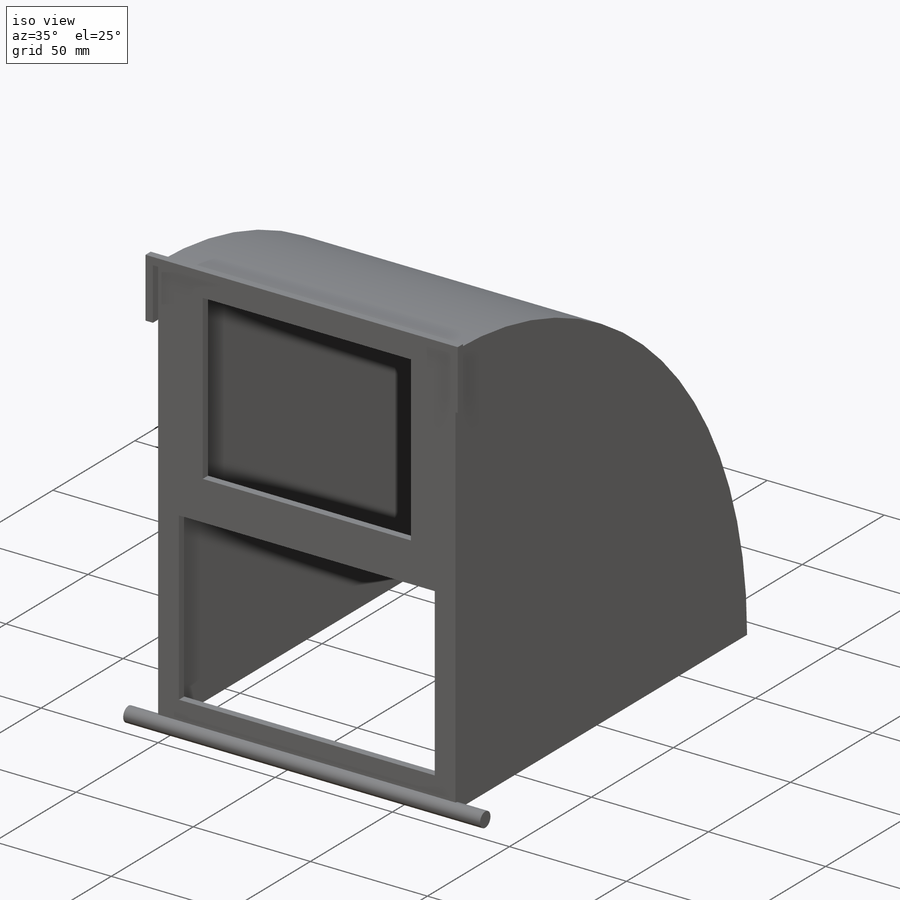
[diagram: iso view]
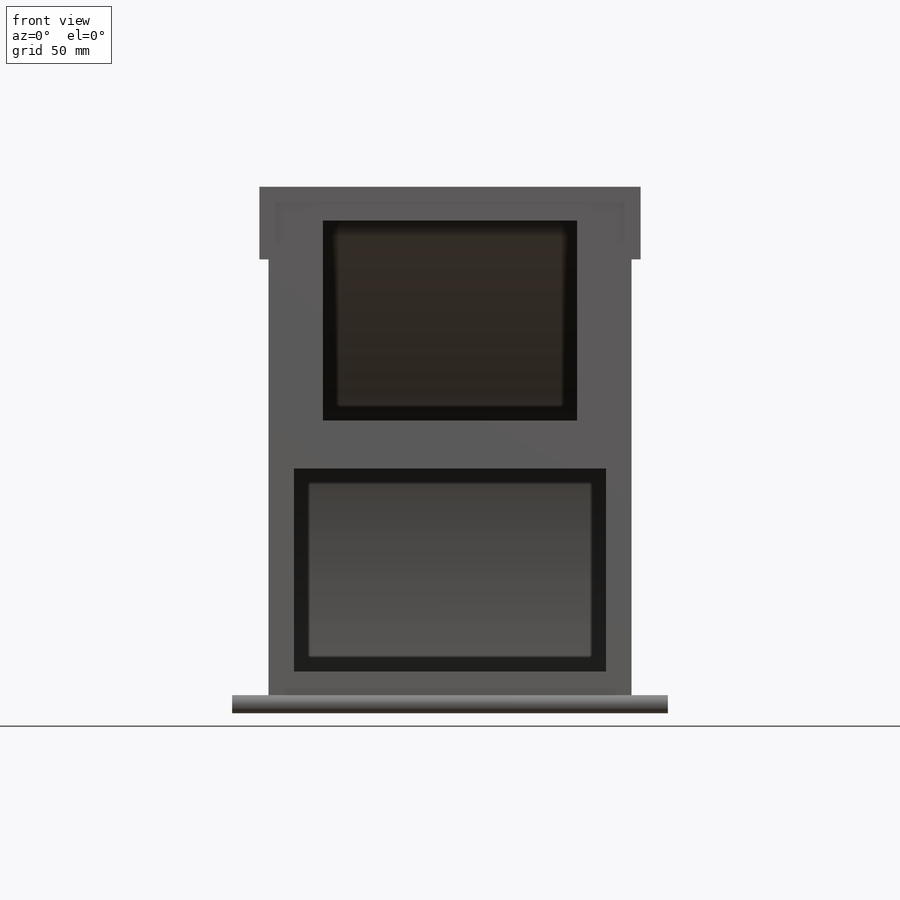
[diagram: front view]
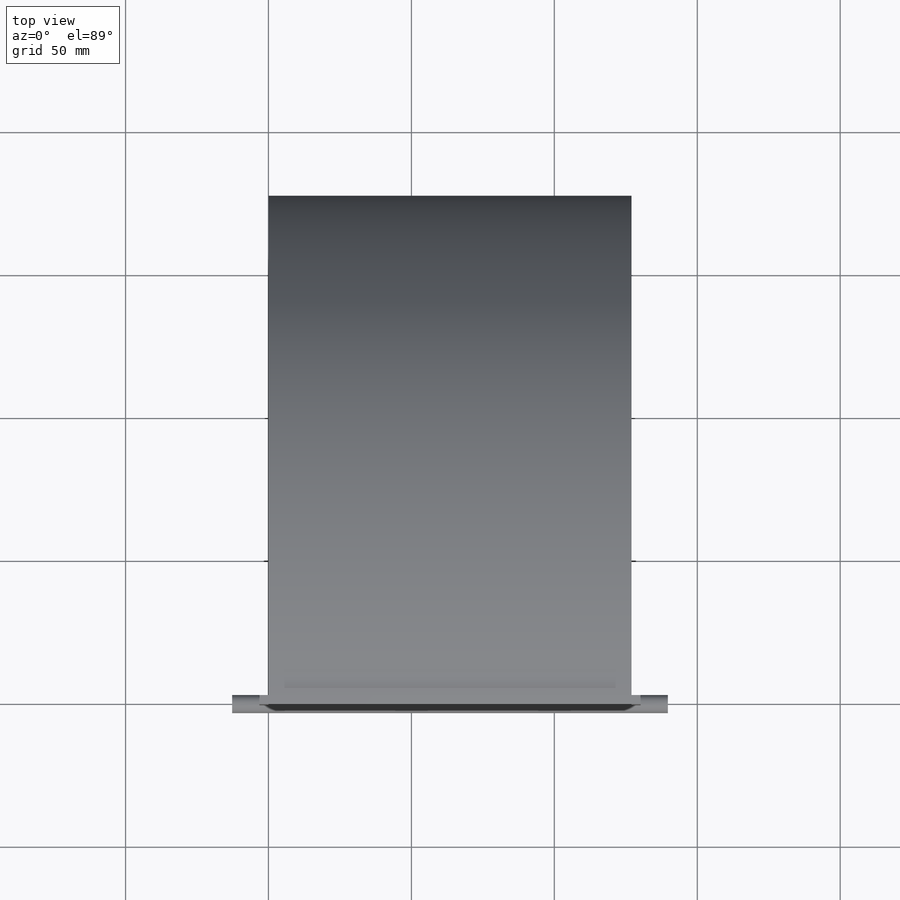
[diagram: top view]
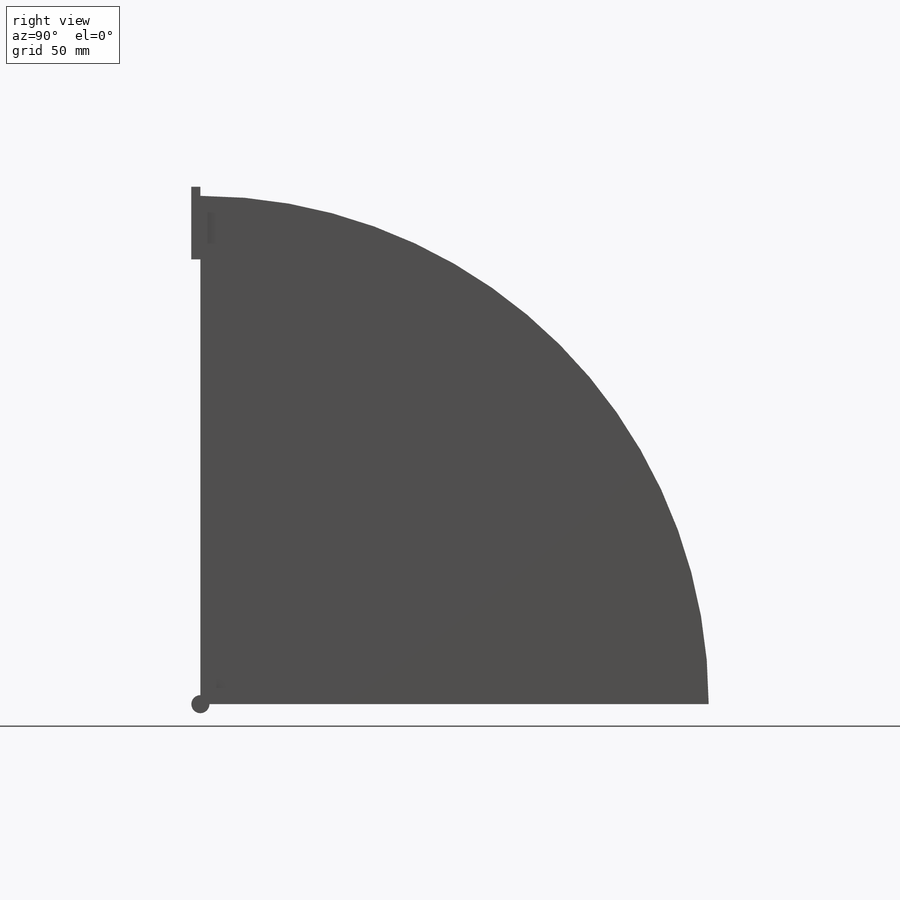
[diagram: right view]
SOLIDWORKS PART (.sldprt)
format: sldprt  version: not decoded by parser v0  size: 302,080 bytes
history: native  units: mm
features: sketch x8, extrude x5, cut_extrude x3, material x1 (+12 scaffold rows collapsed)
feature tree (29):
  scaffold x12  (default folders/planes/origin — collapsed)
  material  "Material <not specified>"
  sketch  "Sketch1"  dims[D1=355.6mm]
  extrude  "Boss-Extrude1"  Depth=127mm
  sketch  "Sketch2"  dims[D2=25.4mm D3=180.975mm D1=3.175mm]
  extrude  "Boss-Extrude2"  Depth=3.175mm
  sketch  "Sketch4"  dims[D1=6.35mm]
  extrude  "Boss-Extrude7"  Depth=12.7mm
  sketch  "Sketch5"  dims[D1=69.85mm D2=88.9mm D3=71.12mm D4=109.22mm]
  cut_extrude  "Cut-Extrude2"  Depth=5.08mm
  sketch  "Sketch6"  dims[D1=3.175mm]
  cut_extrude  "Cut-Extrude3"  [1 undecoded]
  sketch  "Sketch7"  dims[D1=3.175mm]
  cut_extrude  "Cut-Extrude4"  [1 undecoded]
  sketch  "Sketch8"  dims[D1=1.27mm]
  extrude  "Boss-Extrude9"  Depth=3.175mm
  sketch  "Sketch9"  dims[D1=1.27mm]
  extrude  "Boss-Extrude10"  Depth=3.175mm
decode coverage: 14 of 16 modeling features carry decoded parameters
note: 2 parameter values undecoded
note: suppression state not decoded; provenance and decode notes live in map.json
